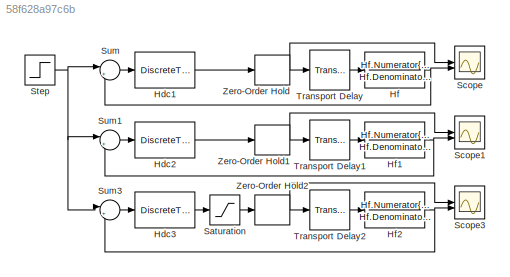
MODEL slx_58f628a97c6b
KIND model
CONFIG AbsTol = auto
CONFIG EnableMultiTasking = off
CONFIG FixedStep = auto
CONFIG MaxStep = auto
CONFIG MinStep = auto
CONFIG RelTol = 1e-3
CONFIG SampleTimeConstraint = Unconstrained
CONFIG SolverName = VariableStepAuto
CONFIG StartTime = 0.0
CONFIG StopTime = 100
BLOCK [DiscreteTransferFcn] Hdc1
  Denominator = Hdc1.Denominator{1,1}
  InputPortMap = u0
  Numerator = Hdc1.Numerator{1,1}
  SampleTime = Ts
BLOCK [DiscreteTransferFcn] Hdc2
  Denominator = Hdc2.Denominator{1,1}
  InputPortMap = u0
  Numerator = Hdc2.Numerator{1,1}
  SampleTime = Ts
BLOCK [DiscreteTransferFcn] Hdc3
  Denominator = Hdc2.Denominator{1,1}
  InputPortMap = u0
  Numerator = Hdc2.Numerator{1,1}
  SampleTime = Ts
BLOCK [TransferFcn] Hf
  Denominator = Hf.Denominator{1,1}
  Numerator = Hf.Numerator{1,1}
BLOCK [TransferFcn] Hf1
  Denominator = Hf.Denominator{1,1}
  Numerator = Hf.Numerator{1,1}
BLOCK [TransferFcn] Hf2
  Denominator = Hf.Denominator{1,1}
  Numerator = Hf.Numerator{1,1}
BLOCK [Saturate] Saturation
  LowerLimit = 0
  UpperLimit = 1
BLOCK [Scope] Scope
  Floating = off
  NumInputPorts = 2
  ScopeSpecificationString = Simulink.scopes.TimeScopeBlockCfg('CurrentConfiguration', extmgr.ConfigurationSet(extmgr.Configuration('Core','General UI',true),extmgr.Configuration('Core','Source UI',true),extmgr.Configuration('Sources','WiredSimulink',true),extmgr.Configuration('Visuals','Time Domain',true,'SerializedDisplays',{struct('MinYLimReal','-8.70234','MaxYLimReal','9.65074','YLabelReal','','MinYLimMag','0.00000','MaxY...<+1392ch>
BLOCK [Scope] Scope1
  Floating = off
  NumInputPorts = 2
  ScopeSpecificationString = Simulink.scopes.TimeScopeBlockCfg('CurrentConfiguration', extmgr.ConfigurationSet(extmgr.Configuration('Core','General UI',true),extmgr.Configuration('Core','Source UI',true),extmgr.Configuration('Sources','WiredSimulink',true,'DataLoggingVariableName','ScopeData1'),extmgr.Configuration('Visuals','Time Domain',true,'SerializedDisplays',{struct('MinYLimReal','-0.49838','MaxYLimReal','4.48544','YLab...<+1433ch>
BLOCK [Scope] Scope3
  Floating = off
  NumInputPorts = 2
  ScopeSpecificationString = Simulink.scopes.TimeScopeBlockCfg('CurrentConfiguration', extmgr.ConfigurationSet(extmgr.Configuration('Core','General UI',true),extmgr.Configuration('Core','Source UI',true),extmgr.Configuration('Sources','WiredSimulink',true,'DataLoggingVariableName','ScopeData3'),extmgr.Configuration('Visuals','Time Domain',true,'SerializedDisplays',{struct('MinYLimReal','-0.12952','MaxYLimReal','1.16565','YLab...<+1433ch>
BLOCK [Step] Step
  SampleTime = 0
  Time = 0
BLOCK [Sum] Sum
  Inputs = |+-
BLOCK [Sum] Sum1
  Inputs = |+-
BLOCK [Sum] Sum3
  Inputs = |+-
BLOCK [TransportDelay] Transport Delay
  DelayTime = k
BLOCK [TransportDelay] Transport Delay1
  DelayTime = k
BLOCK [TransportDelay] Transport Delay2
  DelayTime = k
BLOCK [ZeroOrderHold] Zero-Order Hold
  SampleTime = Ts
BLOCK [ZeroOrderHold] Zero-Order Hold1
  SampleTime = Ts
BLOCK [ZeroOrderHold] Zero-Order Hold2
  SampleTime = Ts
LINE Hdc1:1 -> Zero-Order Hold:1
LINE Hdc2:1 -> Zero-Order Hold1:1
LINE Hdc3:1 -> Saturation:1
NET Hf1:1 -> Scope1:2, Sum1:2
NET Hf2:1 -> Scope3:2, Sum3:2
NET Hf:1 -> Scope:2, Sum:2
LINE Saturation:1 -> Zero-Order Hold2:1
NET Step:1 -> Sum1:1, Sum3:1, Sum:1
LINE Sum1:1 -> Hdc2:1
LINE Sum3:1 -> Hdc3:1
LINE Sum:1 -> Hdc1:1
LINE Transport Delay1:1 -> Hf1:1
LINE Transport Delay2:1 -> Hf2:1
LINE Transport Delay:1 -> Hf:1
NET Zero-Order Hold1:1 -> Scope1:1, Transport Delay1:1
NET Zero-Order Hold2:1 -> Scope3:1, Transport Delay2:1
NET Zero-Order Hold:1 -> Scope:1, Transport Delay:1
note: NET lines group one-source signal fan-out (src -> all destinations, sorted); 1:1 wires keep LINE
